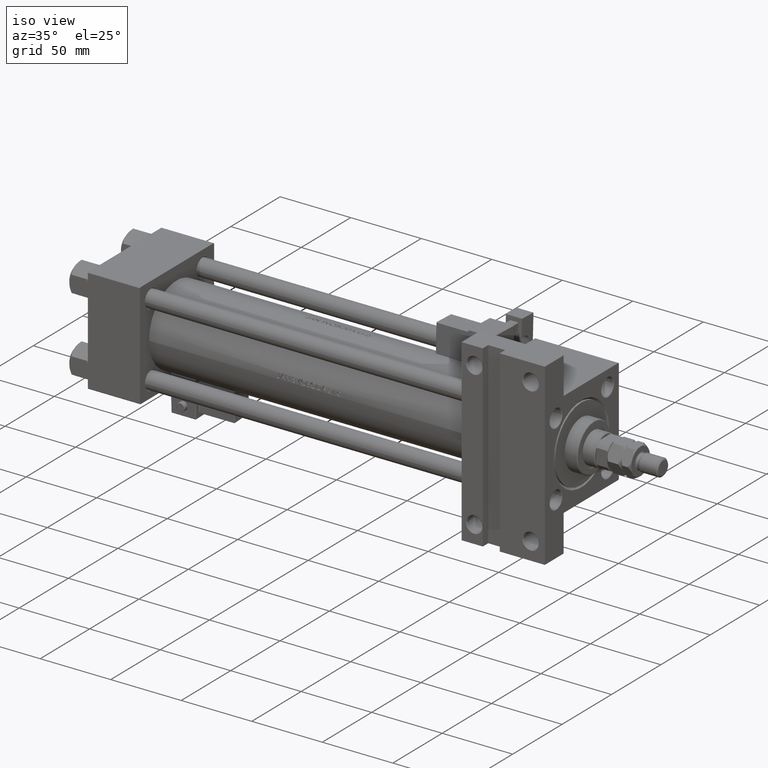
[diagram: clean part render]
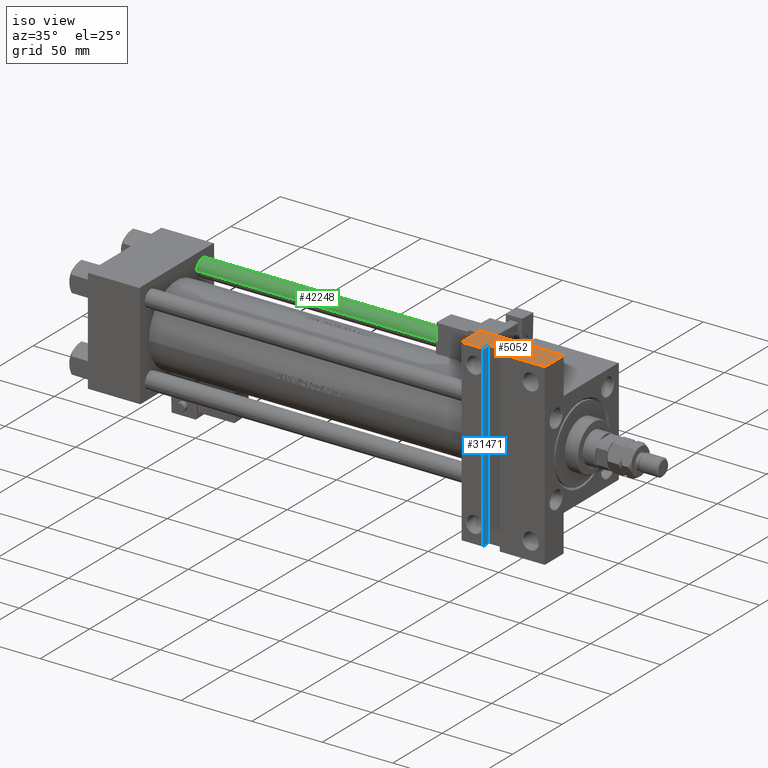
[diagram: same view with three faces highlighted in distinct colors, each labeled with its STEP entity id]
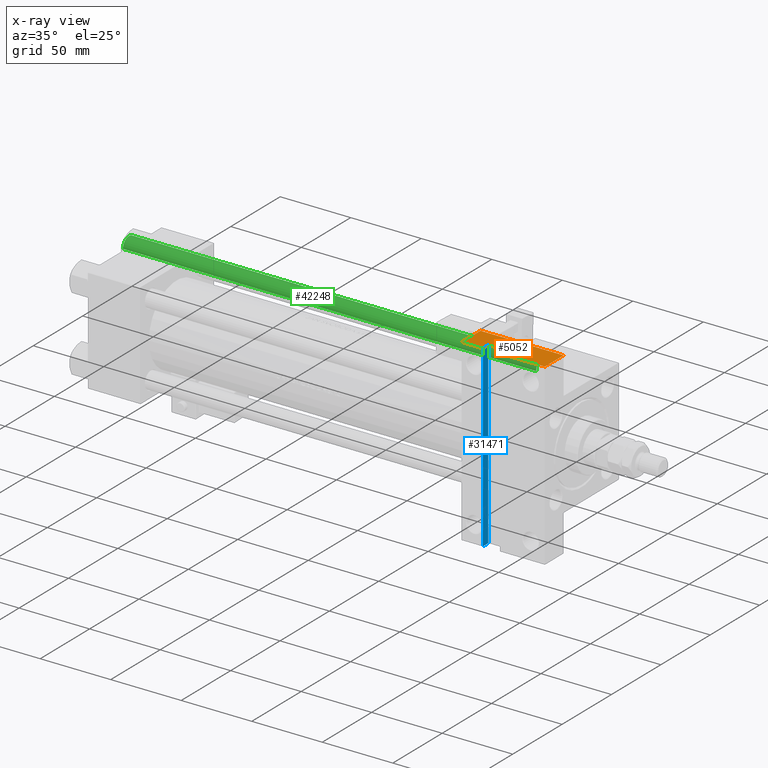
[diagram: x-ray of the same camera — body ghosted, the three highlighted faces saturated]
A machine part, iso view with three faces highlighted in distinct colors.
The next image is the same camera in x-ray (body ghosted, the three faces saturated) — at least one of them is partly hidden behind the body in this view.
Their STEP definitions:

[orange] entity #5052 — the highlighted planar face has unit normal (0, 0, 1).
#327 = LINE ( 'NONE', #23206, #27723 ) ;
#559 = CARTESIAN_POINT ( 'NONE',  ( 324.0000000000000000, -63.50000000000002842, -18.50000000000000000 ) ) ;
#821 = DIRECTION ( 'NONE',  ( 0.000000000000000000, 0.000000000000000000, -1.000000000000000000 ) ) ;
#1608 = CARTESIAN_POINT ( 'NONE',  ( 265.0000000000000000, -63.50000000000002842, -18.50000000000000000 ) ) ;
#1798 = LINE ( 'NONE', #36854, #27135 ) ;
#2343 = EDGE_CURVE ( 'NONE', #37846, #15321, #4821, .T. ) ;
#2670 = EDGE_CURVE ( 'NONE', #7121, #20022, #35916, .T. ) ;
#2679 = ORIENTED_EDGE ( 'NONE', *, *, #31052, .T. ) ;
#3454 = DIRECTION ( 'NONE',  ( -1.000000000000000000, -0.000000000000000000, -0.000000000000000000 ) ) ;
#3853 = LINE ( 'NONE', #31895, #33877 ) ;
#4821 = LINE ( 'NONE', #39339, #30108 ) ;
#5052 = ADVANCED_FACE ( 'NONE', ( #37603 ), #21253, .T. ) ;
#5391 = CARTESIAN_POINT ( 'NONE',  ( 292.0000000000000000, -63.49999999999995737, -32.00000000000000000 ) ) ;
#5405 = DIRECTION ( 'NONE',  ( 0.000000000000000000, -1.000000000000000000, 0.000000000000000000 ) ) ;
#5692 = ORIENTED_EDGE ( 'NONE', *, *, #33007, .F. ) ;
#6333 = EDGE_CURVE ( 'NONE', #17590, #15321, #37076, .T. ) ;
#6710 = ORIENTED_EDGE ( 'NONE', *, *, #2343, .F. ) ;
#7121 = VERTEX_POINT ( 'NONE', #27264 ) ;
#10243 = DIRECTION ( 'NONE',  ( 0.000000000000000000, 0.000000000000000000, -1.000000000000000000 ) ) ;
#14100 = CARTESIAN_POINT ( 'NONE',  ( 279.9999999999999432, -63.49999999999995737, -37.50000000000000000 ) ) ;
#14218 = CARTESIAN_POINT ( 'NONE',  ( 265.0000000000000000, -63.50000000000002842, -18.50000000000000000 ) ) ;
#14572 = EDGE_CURVE ( 'NONE', #28939, #33169, #1798, .T. ) ;
#15321 = VERTEX_POINT ( 'NONE', #30109 ) ;
#15484 = CARTESIAN_POINT ( 'NONE',  ( 291.9999999999999432, -63.50000000000002842, -32.00000000000000000 ) ) ;
#16488 = EDGE_CURVE ( 'NONE', #20022, #51191, #3853, .T. ) ;
#17590 = VERTEX_POINT ( 'NONE', #15484 ) ;
#17848 = ORIENTED_EDGE ( 'NONE', *, *, #14572, .T. ) ;
#20022 = VERTEX_POINT ( 'NONE', #14100 ) ;
#20210 = DIRECTION ( 'NONE',  ( -1.000000000000000000, -0.000000000000000000, -0.000000000000000000 ) ) ;
#21253 = PLANE ( 'NONE',  #29408 ) ;
#21285 = ORIENTED_EDGE ( 'NONE', *, *, #41028, .F. ) ;
#22048 = DIRECTION ( 'NONE',  ( -1.000000000000000000, -0.000000000000000000, -0.000000000000000000 ) ) ;
#23206 = CARTESIAN_POINT ( 'NONE',  ( 279.9999999999999432, -63.49999999999995737, -32.00000000000000000 ) ) ;
#23475 = EDGE_LOOP ( 'NONE', ( #41904, #6710, #21285, #17848, #2679, #27602, #36721, #5692 ) ) ;
#25523 = CARTESIAN_POINT ( 'NONE',  ( 265.0000000000000000, -63.50000000000002842, -37.50000000000000000 ) ) ;
#27135 = VECTOR ( 'NONE', #22048, 1000.000000000000000 ) ;
#27264 = CARTESIAN_POINT ( 'NONE',  ( 279.9999999999999432, -63.49999999999995737, -32.00000000000000000 ) ) ;
#27602 = ORIENTED_EDGE ( 'NONE', *, *, #16488, .F. ) ;
#27723 = VECTOR ( 'NONE', #3454, 1000.000000000000000 ) ;
#27941 = DIRECTION ( 'NONE',  ( -1.000000000000000000, -0.000000000000000000, -0.000000000000000000 ) ) ;
#28485 = VECTOR ( 'NONE', #44233, 1000.000000000000000 ) ;
#28939 = VERTEX_POINT ( 'NONE', #51376 ) ;
#28968 = LINE ( 'NONE', #45824, #30132 ) ;
#29408 = AXIS2_PLACEMENT_3D ( 'NONE', #14218, #5405, #29828 ) ;
#29828 = DIRECTION ( 'NONE',  ( 0.000000000000000000, -0.000000000000000000, -1.000000000000000000 ) ) ;
#30108 = VECTOR ( 'NONE', #27941, 1000.000000000000000 ) ;
#30109 = CARTESIAN_POINT ( 'NONE',  ( 292.0000000000000000, -63.49999999999995737, -37.50000000000000000 ) ) ;
#30132 = VECTOR ( 'NONE', #10243, 1000.000000000000000 ) ;
#31052 = EDGE_CURVE ( 'NONE', #33169, #51191, #28968, .T. ) ;
#31895 = CARTESIAN_POINT ( 'NONE',  ( 265.0000000000000000, -63.50000000000002842, -37.50000000000000000 ) ) ;
#33007 = EDGE_CURVE ( 'NONE', #17590, #7121, #327, .T. ) ;
#33169 = VERTEX_POINT ( 'NONE', #1608 ) ;
#33877 = VECTOR ( 'NONE', #20210, 1000.000000000000000 ) ;
#35622 = LINE ( 'NONE', #559, #37013 ) ;
#35916 = LINE ( 'NONE', #43451, #28485 ) ;
#36721 = ORIENTED_EDGE ( 'NONE', *, *, #2670, .F. ) ;
#36854 = CARTESIAN_POINT ( 'NONE',  ( 265.0000000000000000, -63.50000000000002842, -18.50000000000000000 ) ) ;
#37013 = VECTOR ( 'NONE', #821, 1000.000000000000000 ) ;
#37076 = LINE ( 'NONE', #5391, #51021 ) ;
#37603 = FACE_OUTER_BOUND ( 'NONE', #23475, .T. ) ;
#37846 = VERTEX_POINT ( 'NONE', #44677 ) ;
#39339 = CARTESIAN_POINT ( 'NONE',  ( 265.0000000000000000, -63.50000000000002842, -37.50000000000000000 ) ) ;
#40718 = DIRECTION ( 'NONE',  ( -0.000000000000000000, -0.000000000000000000, -1.000000000000000000 ) ) ;
#41028 = EDGE_CURVE ( 'NONE', #28939, #37846, #35622, .T. ) ;
#41904 = ORIENTED_EDGE ( 'NONE', *, *, #6333, .T. ) ;
#43451 = CARTESIAN_POINT ( 'NONE',  ( 279.9999999999999432, -63.49999999999995737, -32.00000000000000000 ) ) ;
#44233 = DIRECTION ( 'NONE',  ( -0.000000000000000000, -0.000000000000000000, -1.000000000000000000 ) ) ;
#44677 = CARTESIAN_POINT ( 'NONE',  ( 324.0000000000000000, -63.50000000000002842, -37.50000000000000000 ) ) ;
#45824 = CARTESIAN_POINT ( 'NONE',  ( 265.0000000000000000, -63.50000000000002842, -18.50000000000000000 ) ) ;
#51021 = VECTOR ( 'NONE', #40718, 1000.000000000000000 ) ;
#51191 = VERTEX_POINT ( 'NONE', #25523 ) ;
#51376 = CARTESIAN_POINT ( 'NONE',  ( 324.0000000000000000, -63.50000000000002842, -18.50000000000000000 ) ) ;

[blue] entity #31471 — the highlighted planar face has unit normal (-1, 0, 0).
#2670 = EDGE_CURVE ( 'NONE', #7121, #20022, #35916, .T. ) ;
#5506 = DIRECTION ( 'NONE',  ( -0.000000000000000000, -0.000000000000000000, -1.000000000000000000 ) ) ;
#5518 = DIRECTION ( 'NONE',  ( -1.000000000000000000, 0.000000000000000000, 0.000000000000000000 ) ) ;
#5827 = EDGE_LOOP ( 'NONE', ( #29826, #49138, #47977, #33979 ) ) ;
#7121 = VERTEX_POINT ( 'NONE', #27264 ) ;
#14100 = CARTESIAN_POINT ( 'NONE',  ( 279.9999999999999432, -63.49999999999995737, -37.50000000000000000 ) ) ;
#15962 = VERTEX_POINT ( 'NONE', #37712 ) ;
#17187 = LINE ( 'NONE', #20054, #44964 ) ;
#20022 = VERTEX_POINT ( 'NONE', #14100 ) ;
#20054 = CARTESIAN_POINT ( 'NONE',  ( 279.9999999999999432, -63.49999999999995737, -37.50000000000000000 ) ) ;
#23639 = LINE ( 'NONE', #35836, #31021 ) ;
#25259 = PLANE ( 'NONE',  #40106 ) ;
#26539 = DIRECTION ( 'NONE',  ( 0.000000000000000000, 0.000000000000000000, 1.000000000000000000 ) ) ;
#27264 = CARTESIAN_POINT ( 'NONE',  ( 279.9999999999999432, -63.49999999999995737, -32.00000000000000000 ) ) ;
#28485 = VECTOR ( 'NONE', #44233, 1000.000000000000000 ) ;
#28890 = CARTESIAN_POINT ( 'NONE',  ( 279.9999999999999432, 63.49999999999997158, -32.00000000000000000 ) ) ;
#29083 = EDGE_CURVE ( 'NONE', #20022, #15962, #17187, .T. ) ;
#29826 = ORIENTED_EDGE ( 'NONE', *, *, #29083, .T. ) ;
#31021 = VECTOR ( 'NONE', #43123, 1000.000000000000000 ) ;
#31471 = ADVANCED_FACE ( 'NONE', ( #37711 ), #25259, .F. ) ;
#32419 = EDGE_CURVE ( 'NONE', #7121, #46522, #23639, .T. ) ;
#33125 = VECTOR ( 'NONE', #5506, 1000.000000000000000 ) ;
#33979 = ORIENTED_EDGE ( 'NONE', *, *, #2670, .T. ) ;
#35836 = CARTESIAN_POINT ( 'NONE',  ( 279.9999999999999432, -63.49999999999995737, -32.00000000000000000 ) ) ;
#35916 = LINE ( 'NONE', #43451, #28485 ) ;
#37711 = FACE_OUTER_BOUND ( 'NONE', #5827, .T. ) ;
#37712 = CARTESIAN_POINT ( 'NONE',  ( 279.9999999999999432, 63.49999999999997158, -37.50000000000000000 ) ) ;
#40056 = DIRECTION ( 'NONE',  ( 0.000000000000000000, 1.000000000000000000, 0.000000000000000000 ) ) ;
#40106 = AXIS2_PLACEMENT_3D ( 'NONE', #41087, #5518, #26539 ) ;
#41087 = CARTESIAN_POINT ( 'NONE',  ( 279.9999999999999432, -63.49999999999995737, -32.00000000000000000 ) ) ;
#43123 = DIRECTION ( 'NONE',  ( 0.000000000000000000, 1.000000000000000000, 0.000000000000000000 ) ) ;
#43451 = CARTESIAN_POINT ( 'NONE',  ( 279.9999999999999432, -63.49999999999995737, -32.00000000000000000 ) ) ;
#44233 = DIRECTION ( 'NONE',  ( -0.000000000000000000, -0.000000000000000000, -1.000000000000000000 ) ) ;
#44964 = VECTOR ( 'NONE', #40056, 1000.000000000000000 ) ;
#45755 = LINE ( 'NONE', #49662, #33125 ) ;
#46522 = VERTEX_POINT ( 'NONE', #28890 ) ;
#47382 = EDGE_CURVE ( 'NONE', #46522, #15962, #45755, .T. ) ;
#47977 = ORIENTED_EDGE ( 'NONE', *, *, #32419, .F. ) ;
#49138 = ORIENTED_EDGE ( 'NONE', *, *, #47382, .F. ) ;
#49662 = CARTESIAN_POINT ( 'NONE',  ( 279.9999999999999432, 63.49999999999997158, -32.00000000000000000 ) ) ;

[green] entity #42248 — the highlighted cylindrical surface (edge-blend (fillet) strip) has radius 6 mm, axis along (1, -0, 0).
#570 = LINE ( 'NONE', #12264, #26488 ) ;
#2121 = DIRECTION ( 'NONE',  ( 0.000000000000000000, 0.000000000000000000, -1.000000000000000000 ) ) ;
#2716 = CARTESIAN_POINT ( 'NONE',  ( -6.000000000000000888, 0.000000000000000000, 293.5000000000000568 ) ) ;
#5366 = VECTOR ( 'NONE', #29384, 1000.000000000000000 ) ;
#5447 = CARTESIAN_POINT ( 'NONE',  ( 0.000000000000000000, 0.000000000000000000, 294.0000000000000000 ) ) ;
#6209 = EDGE_CURVE ( 'NONE', #23970, #47985, #9135, .T. ) ;
#7783 = CIRCLE ( 'NONE', #42586, 6.000000000000000888 ) ;
#9135 = LINE ( 'NONE', #9380, #5366 ) ;
#9380 = CARTESIAN_POINT ( 'NONE',  ( 6.000000000000000888, 7.347880794884120722E-16, 294.0000000000000000 ) ) ;
#9969 = ORIENTED_EDGE ( 'NONE', *, *, #14239, .T. ) ;
#11755 = EDGE_LOOP ( 'NONE', ( #49881, #9969, #31711, #34161 ) ) ;
#12264 = CARTESIAN_POINT ( 'NONE',  ( -6.000000000000000888, 0.000000000000000000, 294.0000000000000000 ) ) ;
#13914 = CARTESIAN_POINT ( 'NONE',  ( 6.000000000000000888, 7.347880794884120722E-16, 293.5000000000000568 ) ) ;
#14239 = EDGE_CURVE ( 'NONE', #23970, #22016, #39542, .T. ) ;
#18149 = VERTEX_POINT ( 'NONE', #35867 ) ;
#22016 = VERTEX_POINT ( 'NONE', #2716 ) ;
#23970 = VERTEX_POINT ( 'NONE', #13914 ) ;
#23990 = EDGE_CURVE ( 'NONE', #18149, #47985, #7783, .T. ) ;
#25191 = CYLINDRICAL_SURFACE ( 'NONE', #42836, 6.000000000000000888 ) ;
#25458 = DIRECTION ( 'NONE',  ( -0.000000000000000000, -0.000000000000000000, -1.000000000000000000 ) ) ;
#25511 = CARTESIAN_POINT ( 'NONE',  ( 0.000000000000000000, 0.000000000000000000, 293.5000000000000568 ) ) ;
#26488 = VECTOR ( 'NONE', #35371, 1000.000000000000000 ) ;
#26632 = DIRECTION ( 'NONE',  ( -0.000000000000000000, -0.000000000000000000, 1.000000000000000000 ) ) ;
#29384 = DIRECTION ( 'NONE',  ( -0.000000000000000000, -0.000000000000000000, -1.000000000000000000 ) ) ;
#30519 = DIRECTION ( 'NONE',  ( 1.000000000000000000, 0.000000000000000000, 0.000000000000000000 ) ) ;
#30778 = CARTESIAN_POINT ( 'NONE',  ( 0.000000000000000000, 0.000000000000000000, 0.5000000000000559552 ) ) ;
#31711 = ORIENTED_EDGE ( 'NONE', *, *, #50663, .T. ) ;
#32611 = CARTESIAN_POINT ( 'NONE',  ( 6.000000000000000888, 7.347880794884120722E-16, 0.5000000000000559552 ) ) ;
#33750 = DIRECTION ( 'NONE',  ( -1.000000000000000000, 0.000000000000000000, 0.000000000000000000 ) ) ;
#34161 = ORIENTED_EDGE ( 'NONE', *, *, #23990, .T. ) ;
#35371 = DIRECTION ( 'NONE',  ( -0.000000000000000000, -0.000000000000000000, -1.000000000000000000 ) ) ;
#35867 = CARTESIAN_POINT ( 'NONE',  ( -6.000000000000000888, 0.000000000000000000, 0.5000000000000559552 ) ) ;
#37059 = AXIS2_PLACEMENT_3D ( 'NONE', #25511, #2121, #41334 ) ;
#39542 = CIRCLE ( 'NONE', #37059, 6.000000000000000888 ) ;
#41334 = DIRECTION ( 'NONE',  ( 1.000000000000000000, 0.000000000000000000, 0.000000000000000000 ) ) ;
#42248 = ADVANCED_FACE ( 'NONE', ( #49340 ), #25191, .T. ) ;
#42586 = AXIS2_PLACEMENT_3D ( 'NONE', #30778, #26632, #30519 ) ;
#42836 = AXIS2_PLACEMENT_3D ( 'NONE', #5447, #25458, #33750 ) ;
#47985 = VERTEX_POINT ( 'NONE', #32611 ) ;
#49340 = FACE_OUTER_BOUND ( 'NONE', #11755, .T. ) ;
#49881 = ORIENTED_EDGE ( 'NONE', *, *, #6209, .F. ) ;
#50663 = EDGE_CURVE ( 'NONE', #22016, #18149, #570, .T. ) ;